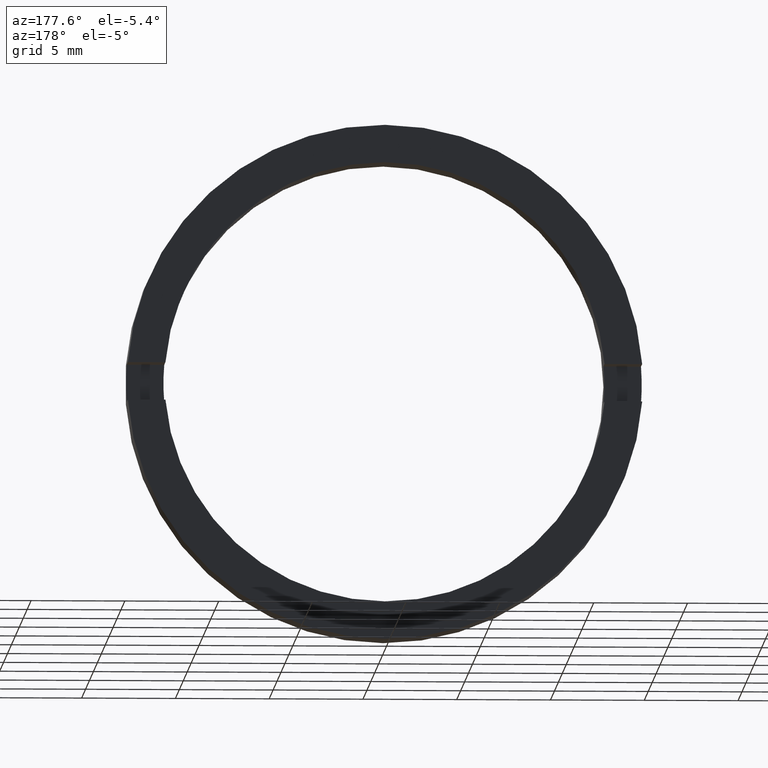
[diagram: clean part render]
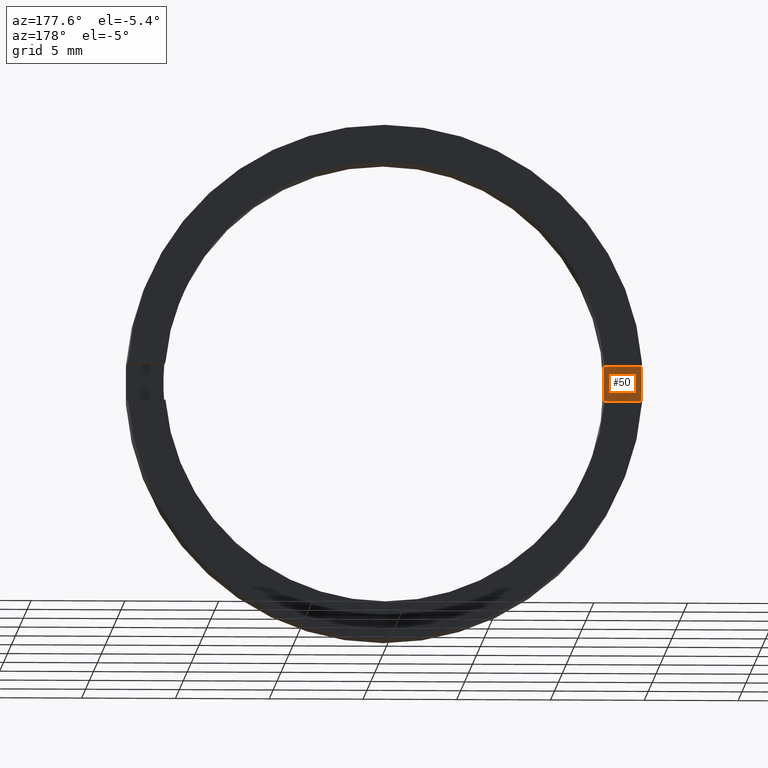
[diagram: same view with one face highlighted and labeled with its STEP entity id]
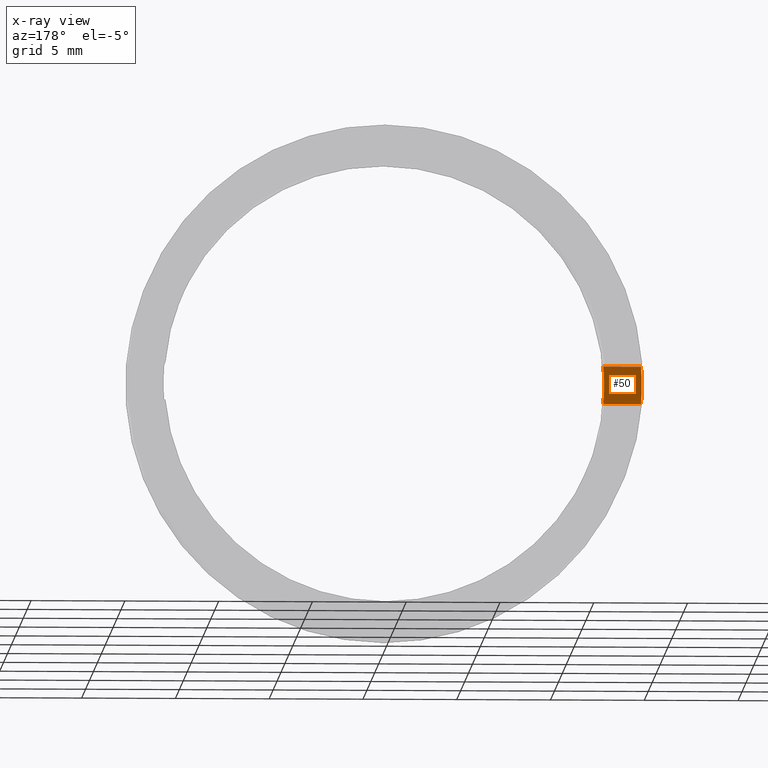
[diagram: x-ray of the same camera — body ghosted, the highlighted face saturated]
A machine part, auxiliary view. The second image highlights one B-rep face of the part: STEP entity #50.
The next image is the same camera in x-ray: the body ghosted, the highlighted face saturated — about 0% of this face is hidden behind the body in this view.
In plain terms, the highlighted planar face has unit normal (0, 1, 0).
Its self-contained STEP definition (entity closure, byte-faithful):
#49 = CARTESIAN_POINT ( 'NONE',  ( -13.71358815190248300, -3.464249787179428400, 0.9999999999999995600 ) ) ;
#50 = ADVANCED_FACE ( 'NONE', ( #362 ), #448, .T. ) ;
#52 = EDGE_CURVE ( 'NONE', #93, #234, #293, .T. ) ;
#57 = ORIENTED_EDGE ( 'NONE', *, *, #311, .T. ) ;
#68 = CARTESIAN_POINT ( 'NONE',  ( 0.0000000000000000000, -3.464249787179428400, 0.0000000000000000000 ) ) ;
#93 = VERTEX_POINT ( 'NONE', #274 ) ;
#126 = EDGE_CURVE ( 'NONE', #234, #350, #321, .T. ) ;
#135 = ORIENTED_EDGE ( 'NONE', *, *, #52, .T. ) ;
#141 = ORIENTED_EDGE ( 'NONE', *, *, #126, .T. ) ;
#144 = DIRECTION ( 'NONE',  ( 0.0000000000000000000, 1.000000000000000000, 0.0000000000000000000 ) ) ;
#149 = DIRECTION ( 'NONE',  ( -0.0000000000000000000, -1.000000000000000000, -0.0000000000000000000 ) ) ;
#182 = AXIS2_PLACEMENT_3D ( 'NONE', #444, #371, #338 ) ;
#194 = VECTOR ( 'NONE', #411, 1000.000000000000000 ) ;
#224 = DIRECTION ( 'NONE',  ( 0.0000000000000000000, 0.0000000000000000000, 1.000000000000000000 ) ) ;
#234 = VERTEX_POINT ( 'NONE', #316 ) ;
#241 = EDGE_CURVE ( 'NONE', #268, #93, #248, .T. ) ;
#248 = CIRCLE ( 'NONE', #282, 11.75000000000000700 ) ;
#268 = VERTEX_POINT ( 'NONE', #467 ) ;
#274 = CARTESIAN_POINT ( 'NONE',  ( -11.70736947396810200, -3.464249787179428400, -0.9999999999999995600 ) ) ;
#276 = CARTESIAN_POINT ( 'NONE',  ( -26.85254027261461800, -3.464249787179431100, 1.000000000000000000 ) ) ;
#282 = AXIS2_PLACEMENT_3D ( 'NONE', #389, #149, #428 ) ;
#293 = LINE ( 'NONE', #375, #194 ) ;
#311 = EDGE_CURVE ( 'NONE', #350, #268, #431, .T. ) ;
#316 = CARTESIAN_POINT ( 'NONE',  ( -13.71358815190248300, -3.464249787179428400, -0.9999999999999995600 ) ) ;
#319 = VECTOR ( 'NONE', #351, 1000.000000000000000 ) ;
#321 = CIRCLE ( 'NONE', #323, 13.75000000000000700 ) ;
#323 = AXIS2_PLACEMENT_3D ( 'NONE', #68, #144, #224 ) ;
#338 = DIRECTION ( 'NONE',  ( 0.0000000000000000000, -0.0000000000000000000, 1.000000000000000000 ) ) ;
#350 = VERTEX_POINT ( 'NONE', #49 ) ;
#351 = DIRECTION ( 'NONE',  ( 1.000000000000000000, 0.0000000000000000000, 0.0000000000000000000 ) ) ;
#361 = ORIENTED_EDGE ( 'NONE', *, *, #241, .T. ) ;
#362 = FACE_OUTER_BOUND ( 'NONE', #385, .T. ) ;
#371 = DIRECTION ( 'NONE',  ( 0.0000000000000000000, 1.000000000000000000, 0.0000000000000000000 ) ) ;
#375 = CARTESIAN_POINT ( 'NONE',  ( -26.85254027261461800, -3.464249787179431100, -1.000000000000000000 ) ) ;
#385 = EDGE_LOOP ( 'NONE', ( #141, #57, #361, #135 ) ) ;
#389 = CARTESIAN_POINT ( 'NONE',  ( 0.0000000000000000000, -3.464249787179428400, 0.0000000000000000000 ) ) ;
#411 = DIRECTION ( 'NONE',  ( -1.000000000000000000, -0.0000000000000000000, -0.0000000000000000000 ) ) ;
#428 = DIRECTION ( 'NONE',  ( 0.0000000000000000000, 0.0000000000000000000, 1.000000000000000000 ) ) ;
#431 = LINE ( 'NONE', #276, #319 ) ;
#444 = CARTESIAN_POINT ( 'NONE',  ( 0.0000000000000000000, -3.464249787179431100, 0.0000000000000000000 ) ) ;
#448 = PLANE ( 'NONE',  #182 ) ;
#467 = CARTESIAN_POINT ( 'NONE',  ( -11.70736947396810200, -3.464249787179428400, 0.9999999999999995600 ) ) ;